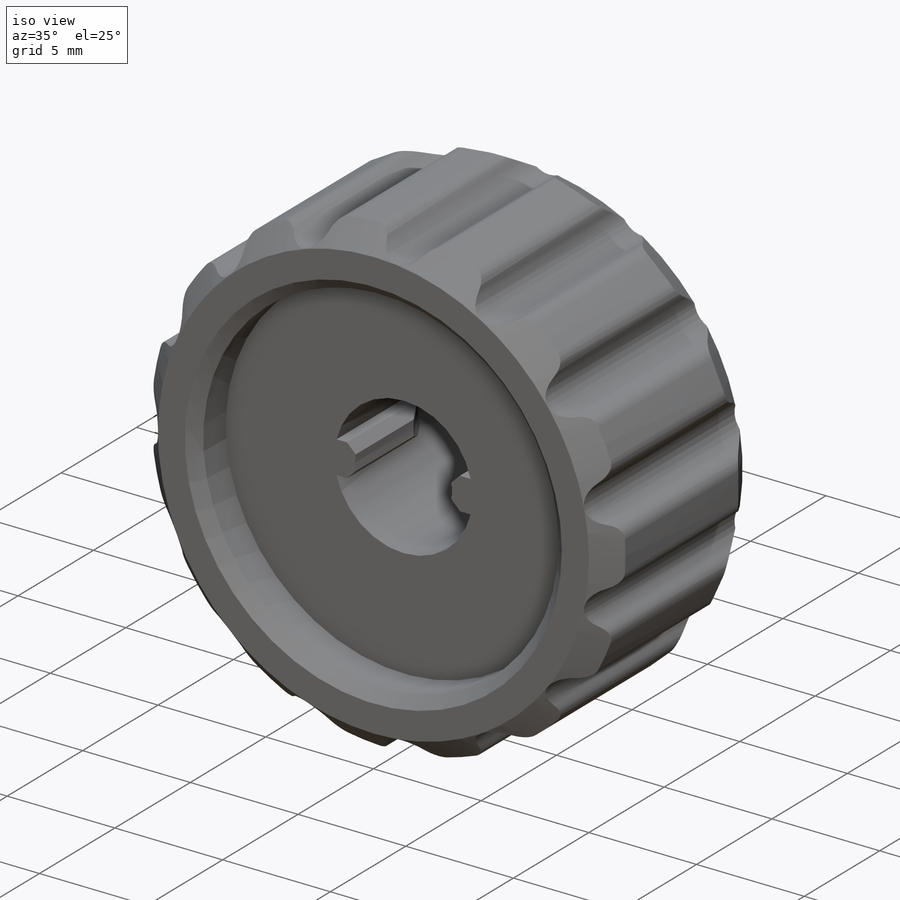
[diagram: iso view]
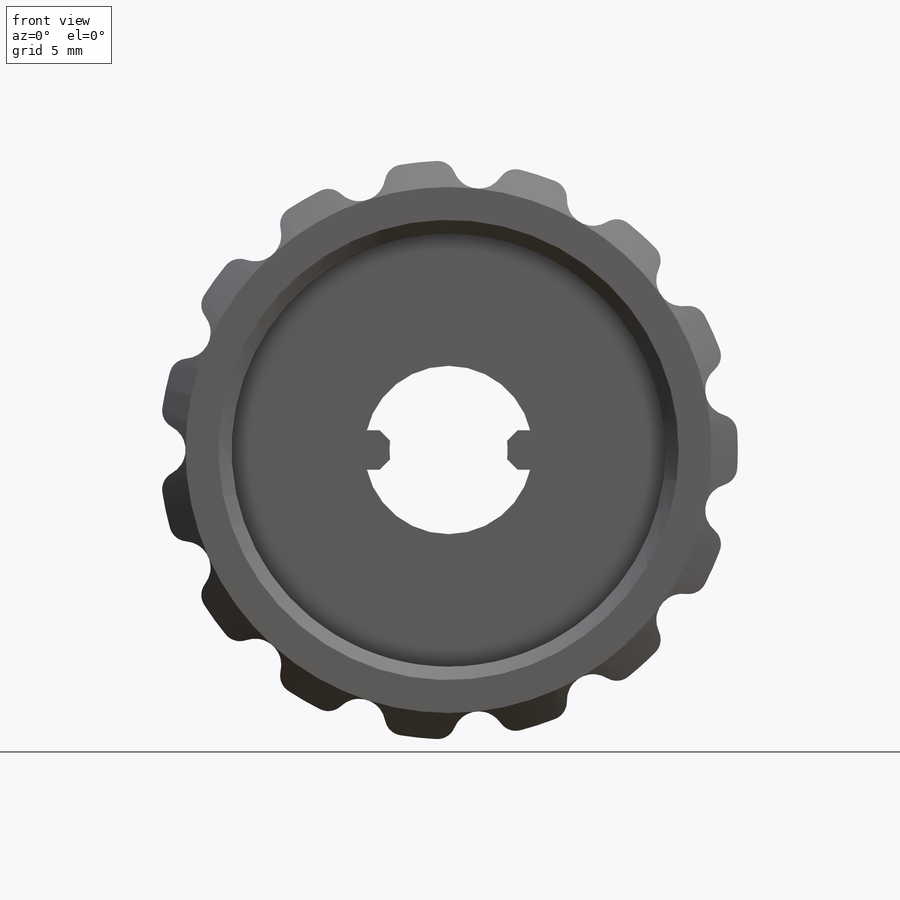
[diagram: front view]
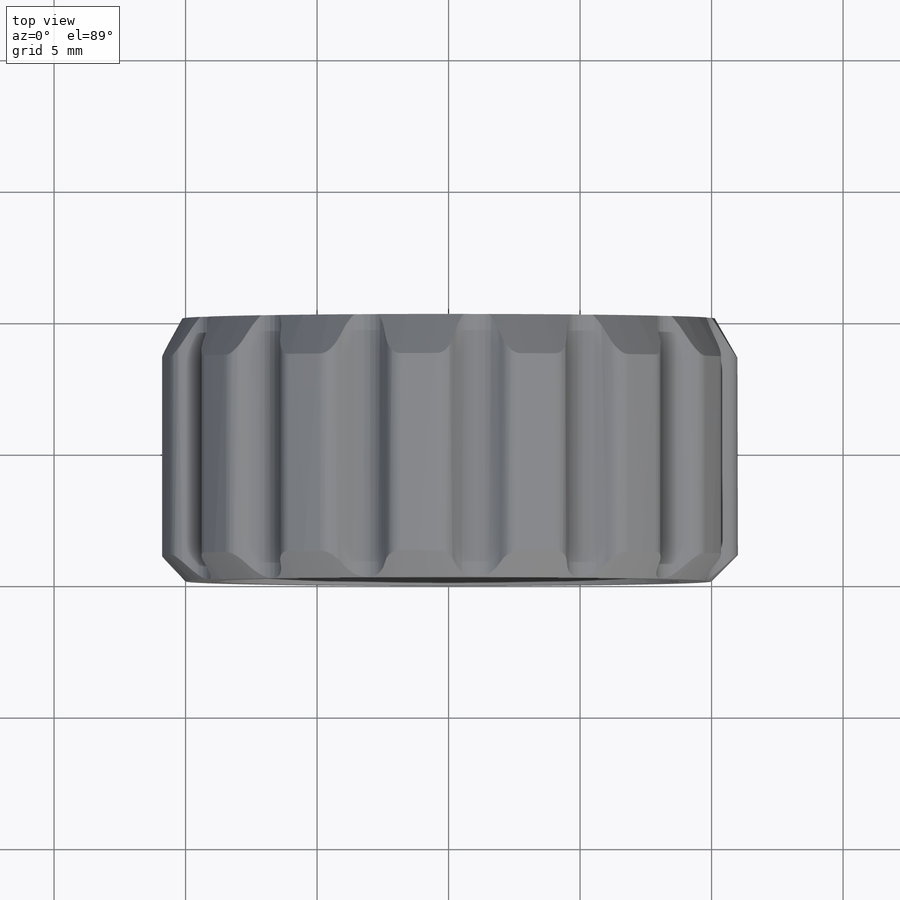
[diagram: top view]
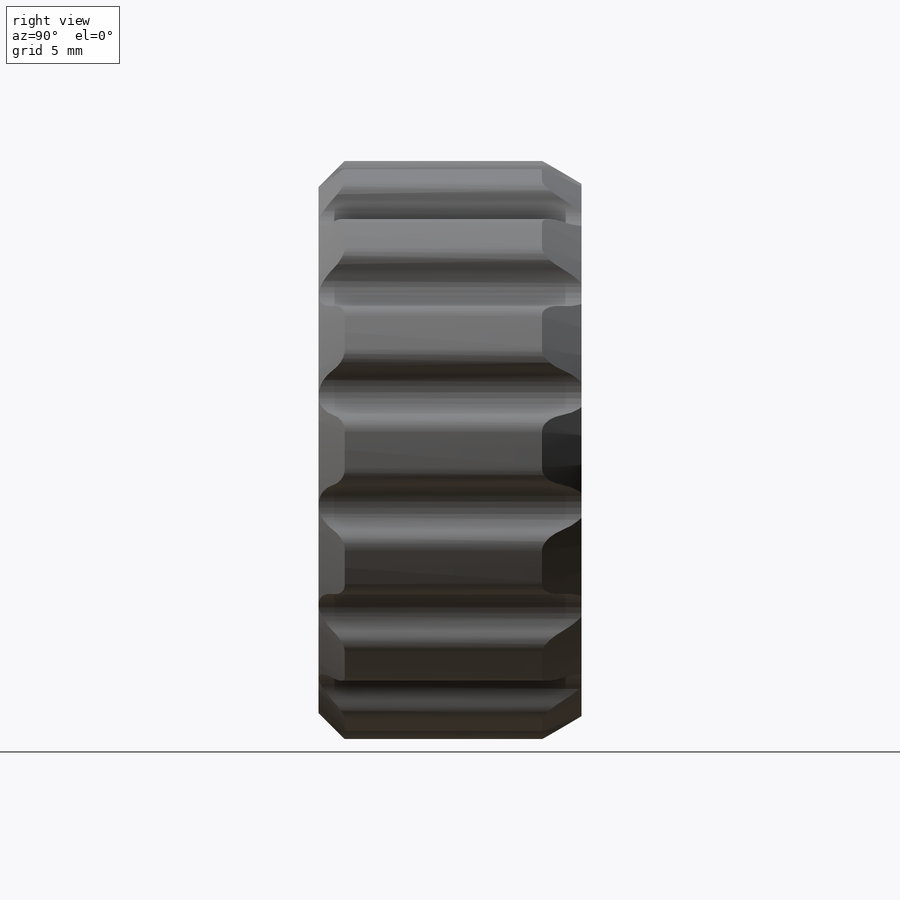
[diagram: right view]
SOLIDWORKS PART (.sldprt)
format: sldprt  version: not decoded by parser v0  size: 612,352 bytes
history: native  units: mm
features: sketch x5, chamfer x5, cut_extrude x4, plane x3, material x1, extrude x1, fillet x1 (+10 scaffold rows collapsed)
feature tree (30):
  scaffold x10  (default folders/planes/origin — collapsed)
  material  "Matériau <non spécifié>"
  plane  "Plan de face"
  plane  "Plan de dessus"
  plane  "Plan de droite"
  sketch  "Esquisse1"  dims[D1=22.0mm D2=2.0mm D3=15.0]
  extrude  "Boss.-Extru.1"  Depth=10mm
  fillet  "Congé1"  Radius=0.7mm
  chamfer  "Chanfrein2"  Distance=1mm Angle=45deg
  chamfer  "Chanfrein3"  Distance=1.5mm Angle=30deg
  sketch  "Esquisse2"  dims[D1=16.5mm]
  cut_extrude  "Enlèv. mat.-Extru.1"  Depth=2mm
  chamfer  "Chanfrein4"  Distance=0.5mm Angle=45deg
  sketch  "Esquisse3"  dims[D1=6.4mm D2=1.5mm D3=0.75mm]
  cut_extrude  "Enlèv. mat.-Extru.2"  Depth=33mm
  sketch  "Esquisse4"  dims[D1=4.5mm]
  cut_extrude  "Enlèv. mat.-Extru.3"  Depth=33mm
  chamfer  "Chanfrein5"  Distance=0.5mm Angle=45deg
  sketch  "Esquisse6"  dims[D1=6.4mm]
  cut_extrude  "Enlèv. mat.-Extru.5"  Depth=4.5mm
  chamfer  "Chanfrein7"  Distance=2mm Angle=30deg
decode coverage: 16 of 16 modeling features carry decoded parameters
note: suppression state not decoded; provenance and decode notes live in map.json
